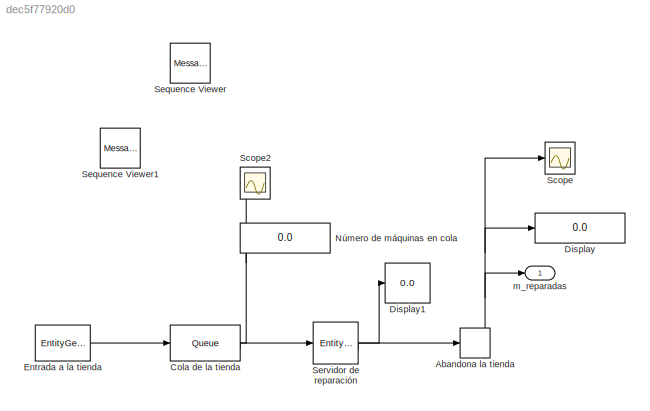
MODEL slx_dec5f77920d0
KIND model
CONFIG AbsTol = auto
CONFIG EnableMultiTasking = off
CONFIG FixedStep = 1
CONFIG MaxStep = auto
CONFIG MinStep = auto
CONFIG RelTol = 1e-3
CONFIG SampleTimeConstraint = Unconstrained
CONFIG SolverName = ode45
CONFIG StartTime = 0
CONFIG StopTime = 30
BLOCK [EntityTerminator] Abandona la tienda
  InputPortMap = u0
  InputPortMessageModes = m
  NumberEntitiesArrived = on
  OutputPortMap = o0
BLOCK [Queue] Cola de la tienda
  Capacity = 10
  EntryAction = entity.MaquinaTipo = randi([1,5]);
  InputPortMap = u0
  InputPortMessageModes = m
  NumberEntitiesInBlock = on
  OutputPortMap = o1,o5
  OutputPortMessageModes = n,m
BLOCK [Display] Display
  Decimation = 1
BLOCK [Display] Display1
  Decimation = 1
BLOCK [EntityGenerator] Entrada a la tienda
  AttributeName = MaquinaTipo
  EntityType = Structured
  EntityTypeName = Entity
  GenerateEntityAtSimulationStart = off
  IntergenerationTimeAction = % Distribucion de poisson con media 2\ndt = poissrnd(2);
  OutputPortMap = o3
  OutputPortMessageModes = m
  TimeSource = MATLAB action
BLOCK [Display] Número de máquinas en cola
  Decimation = 1
BLOCK [Scope] Scope
  Floating = off
  NumInputPorts = 1
  ScopeSpecificationString = Simulink.scopes.TimeScopeBlockCfg('CurrentConfiguration', extmgr.ConfigurationSet(extmgr.Configuration('Core','General UI',true),extmgr.Configuration('Core','Source UI',true),extmgr.Configuration('Sources','WiredSimulink',true),extmgr.Configuration('Visuals','Time Domain',true),extmgr.Configuration('Tools','Plot Navigation',true),extmgr.Configuration('Tools','Measurements',true)),'Version','2023b'...<+1ch>
BLOCK [Scope] Scope2
  Floating = off
  NumInputPorts = 1
  ScopeSpecificationString = Simulink.scopes.TimeScopeBlockCfg('CurrentConfiguration', extmgr.ConfigurationSet(extmgr.Configuration('Core','General UI',true),extmgr.Configuration('Core','Source UI',true),extmgr.Configuration('Sources','WiredSimulink',true,'DataLoggingVariableName','ScopeData1'),extmgr.Configuration('Visuals','Time Domain',true),extmgr.Configuration('Tools','Plot Navigation',true),extmgr.Configuration('Tools',...<+40ch>
BLOCK [MessageViewer] Sequence Viewer
  History = 1000
  SavedRootId = #
BLOCK [MessageViewer] Sequence Viewer1
  History = 1000
  SavedRootId = #
BLOCK [EntityServer] Servidor de reparación
  Capacity = 1
  InputPortMap = u2
  InputPortMessageModes = m
  NumberEntitiesInBlock = on
  OutputPortMap = o1,o9
  OutputPortMessageModes = n,m
  ServiceTimeAction = % Distribucion de poisson con media 1,2,3,4 o 5 \n% Dependiendo del tipo de máquina\ndt = poissrnd(entity.MaquinaTipo);
  ServiceTimeSource = MATLAB action
BLOCK [Outport] m_reparadas
NET Abandona la tienda:1 -> Display:1, Scope:1, m_reparadas:1
NET Cola de la tienda:1 -> Número de máquinas en cola:1, Scope2:1
LINE Cola de la tienda:2 -> Servidor de reparación:1
LINE Entrada a la tienda:1 -> Cola de la tienda:1
LINE Servidor de reparación:1 -> Display1:1
LINE Servidor de reparación:2 -> Abandona la tienda:1
note: NET lines group one-source signal fan-out (src -> all destinations, sorted); 1:1 wires keep LINE
